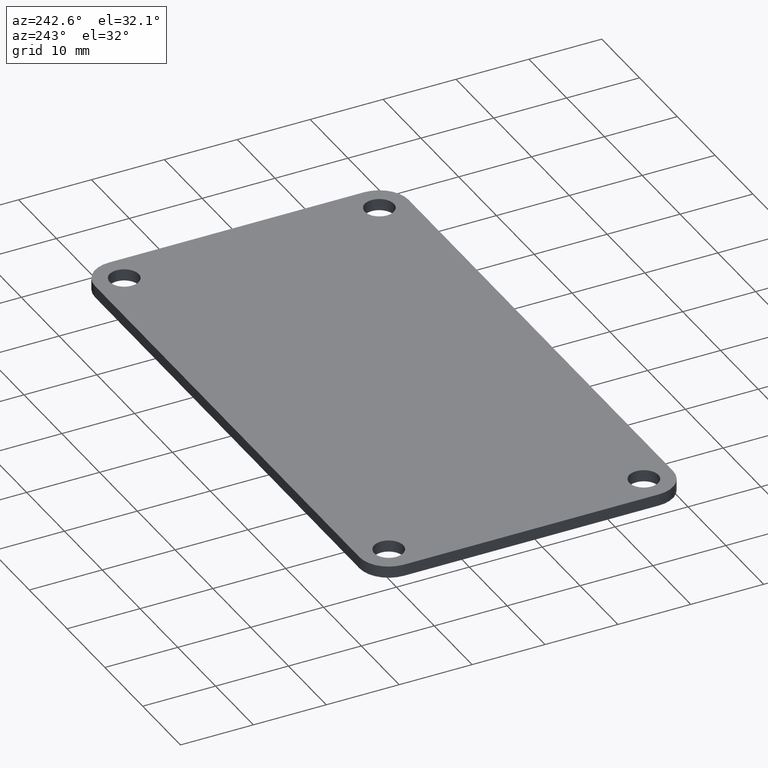
[diagram: clean part render]
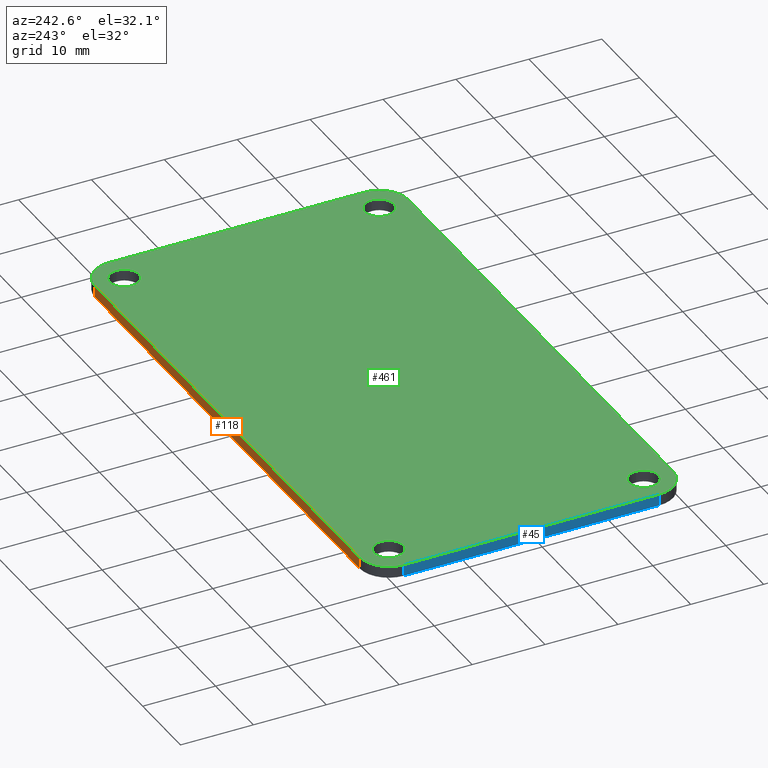
[diagram: same view with three faces highlighted in distinct colors, each labeled with its STEP entity id]
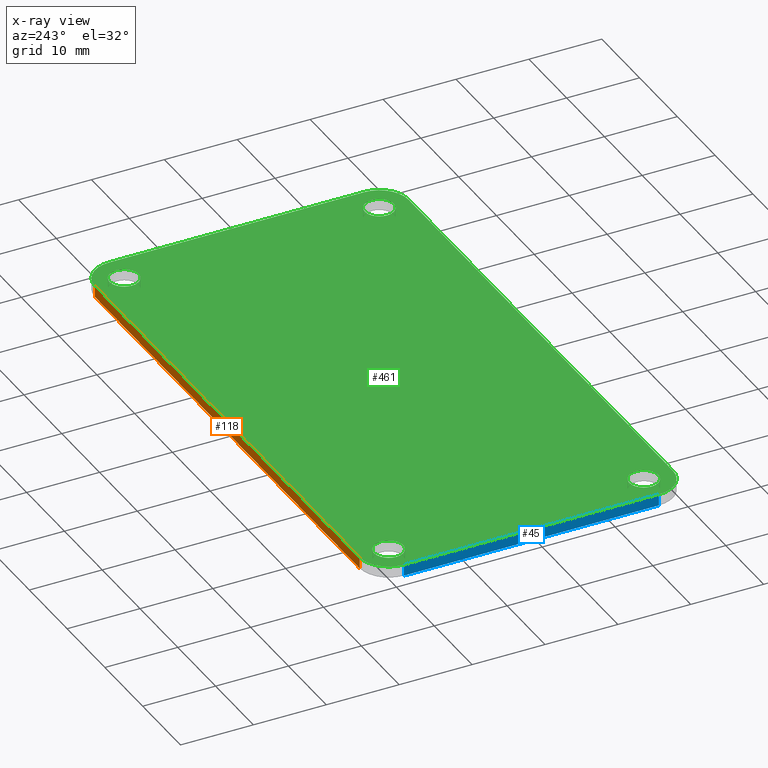
[diagram: x-ray of the same camera — body ghosted, the three highlighted faces saturated]
A machine part, auxiliary view with three faces highlighted in distinct colors.
The next image is the same camera in x-ray (body ghosted, the three faces saturated) — at least one of them is partly hidden behind the body in this view.
Their STEP definitions:

[orange] entity #118 — the highlighted planar face has unit normal (0, 1, 0).
#91 = VERTEX_POINT('',#92);
#92 = CARTESIAN_POINT('',(4.,43.,1.60000442));
#99 = EDGE_CURVE('',#100,#91,#102,.T.);
#100 = VERTEX_POINT('',#101);
#101 = CARTESIAN_POINT('',(4.,43.,0.));
#102 = LINE('',#103,#104);
#103 = CARTESIAN_POINT('',(4.,43.,0.));
#104 = VECTOR('',#105,1.);
#105 = DIRECTION('',(0.,0.,1.));
#118 = ADVANCED_FACE('',(#119),#144,.T.);
#119 = FACE_BOUND('',#120,.T.);
#120 = EDGE_LOOP('',(#121,#122,#130,#138));
#121 = ORIENTED_EDGE('',*,*,#99,.T.);
#122 = ORIENTED_EDGE('',*,*,#123,.T.);
#123 = EDGE_CURVE('',#91,#124,#126,.T.);
#124 = VERTEX_POINT('',#125);
#125 = CARTESIAN_POINT('',(74.,43.,1.60000442));
#126 = LINE('',#127,#128);
#127 = CARTESIAN_POINT('',(4.,43.,1.60000442));
#128 = VECTOR('',#129,1.);
#129 = DIRECTION('',(1.,0.,0.));
#130 = ORIENTED_EDGE('',*,*,#131,.F.);
#131 = EDGE_CURVE('',#132,#124,#134,.T.);
#132 = VERTEX_POINT('',#133);
#133 = CARTESIAN_POINT('',(74.,43.,0.));
#134 = LINE('',#135,#136);
#135 = CARTESIAN_POINT('',(74.,43.,0.));
#136 = VECTOR('',#137,1.);
#137 = DIRECTION('',(0.,0.,1.));
#138 = ORIENTED_EDGE('',*,*,#139,.F.);
#139 = EDGE_CURVE('',#100,#132,#140,.T.);
#140 = LINE('',#141,#142);
#141 = CARTESIAN_POINT('',(4.,43.,0.));
#142 = VECTOR('',#143,1.);
#143 = DIRECTION('',(1.,0.,0.));
#144 = PLANE('',#145);
#145 = AXIS2_PLACEMENT_3D('',#146,#147,#148);
#146 = CARTESIAN_POINT('',(4.,43.,0.));
#147 = DIRECTION('',(0.,1.,0.));
#148 = DIRECTION('',(1.,0.,0.));

[blue] entity #45 — the highlighted planar face has unit normal (-1, 0, 0).
#45 = ADVANCED_FACE('',(#46),#80,.T.);
#46 = FACE_BOUND('',#47,.T.);
#47 = EDGE_LOOP('',(#48,#58,#66,#74));
#48 = ORIENTED_EDGE('',*,*,#49,.T.);
#49 = EDGE_CURVE('',#50,#52,#54,.T.);
#50 = VERTEX_POINT('',#51);
#51 = CARTESIAN_POINT('',(-8.881784154862E-16,4.,0.));
#52 = VERTEX_POINT('',#53);
#53 = CARTESIAN_POINT('',(-8.881784154862E-16,4.,1.60000442));
#54 = LINE('',#55,#56);
#55 = CARTESIAN_POINT('',(-8.881784154862E-16,4.,0.));
#56 = VECTOR('',#57,1.);
#57 = DIRECTION('',(0.,0.,1.));
#58 = ORIENTED_EDGE('',*,*,#59,.T.);
#59 = EDGE_CURVE('',#52,#60,#62,.T.);
#60 = VERTEX_POINT('',#61);
#61 = CARTESIAN_POINT('',(-8.881784197001E-16,39.,1.60000442));
#62 = LINE('',#63,#64);
#63 = CARTESIAN_POINT('',(0.,4.,1.60000442));
#64 = VECTOR('',#65,1.);
#65 = DIRECTION('',(0.,1.,0.));
#66 = ORIENTED_EDGE('',*,*,#67,.F.);
#67 = EDGE_CURVE('',#68,#60,#70,.T.);
#68 = VERTEX_POINT('',#69);
#69 = CARTESIAN_POINT('',(-8.881784197001E-16,39.,0.));
#70 = LINE('',#71,#72);
#71 = CARTESIAN_POINT('',(-8.881784197001E-16,39.,0.));
#72 = VECTOR('',#73,1.);
#73 = DIRECTION('',(0.,0.,1.));
#74 = ORIENTED_EDGE('',*,*,#75,.F.);
#75 = EDGE_CURVE('',#50,#68,#76,.T.);
#76 = LINE('',#77,#78);
#77 = CARTESIAN_POINT('',(0.,4.,0.));
#78 = VECTOR('',#79,1.);
#79 = DIRECTION('',(0.,1.,0.));
#80 = PLANE('',#81);
#81 = AXIS2_PLACEMENT_3D('',#82,#83,#84);
#82 = CARTESIAN_POINT('',(0.,4.,0.));
#83 = DIRECTION('',(-1.,0.,0.));
#84 = DIRECTION('',(0.,1.,0.));

[green] entity #461 — the highlighted planar face has unit normal (-0, -0, -1).
#52 = VERTEX_POINT('',#53);
#53 = CARTESIAN_POINT('',(-8.881784154862E-16,4.,1.60000442));
#59 = EDGE_CURVE('',#52,#60,#62,.T.);
#60 = VERTEX_POINT('',#61);
#61 = CARTESIAN_POINT('',(-8.881784197001E-16,39.,1.60000442));
#62 = LINE('',#63,#64);
#63 = CARTESIAN_POINT('',(0.,4.,1.60000442));
#64 = VECTOR('',#65,1.);
#65 = DIRECTION('',(0.,1.,0.));
#90 = EDGE_CURVE('',#60,#91,#93,.T.);
#91 = VERTEX_POINT('',#92);
#92 = CARTESIAN_POINT('',(4.,43.,1.60000442));
#93 = CIRCLE('',#94,4.001459203163);
#94 = AXIS2_PLACEMENT_3D('',#95,#96,#97);
#95 = CARTESIAN_POINT('',(4.001458937198,38.998541062802,1.60000442));
#96 = DIRECTION('',(0.,0.,-1.));
#97 = DIRECTION('',(-0.999999933533,3.646012926767E-04,0.));
#123 = EDGE_CURVE('',#91,#124,#126,.T.);
#124 = VERTEX_POINT('',#125);
#125 = CARTESIAN_POINT('',(74.,43.,1.60000442));
#126 = LINE('',#127,#128);
#127 = CARTESIAN_POINT('',(4.,43.,1.60000442));
#128 = VECTOR('',#129,1.);
#129 = DIRECTION('',(1.,0.,0.));
#154 = EDGE_CURVE('',#124,#155,#157,.T.);
#155 = VERTEX_POINT('',#156);
#156 = CARTESIAN_POINT('',(78.,39.,1.60000442));
#157 = CIRCLE('',#158,4.001459203163);
#158 = AXIS2_PLACEMENT_3D('',#159,#160,#161);
#159 = CARTESIAN_POINT('',(73.998541062802,38.998541062802,1.60000442));
#160 = DIRECTION('',(0.,0.,-1.));
#161 = DIRECTION('',(3.646012926767E-04,0.999999933533,0.));
#187 = EDGE_CURVE('',#155,#188,#190,.T.);
#188 = VERTEX_POINT('',#189);
#189 = CARTESIAN_POINT('',(78.,4.,1.60000442));
#190 = LINE('',#191,#192);
#191 = CARTESIAN_POINT('',(78.,39.,1.60000442));
#192 = VECTOR('',#193,1.);
#193 = DIRECTION('',(0.,-1.,0.));
#218 = EDGE_CURVE('',#188,#219,#221,.T.);
#219 = VERTEX_POINT('',#220);
#220 = CARTESIAN_POINT('',(74.,-1.33226762955E-15,1.60000442));
#221 = CIRCLE('',#222,4.001459203163);
#222 = AXIS2_PLACEMENT_3D('',#223,#224,#225);
#223 = CARTESIAN_POINT('',(73.998541062802,4.001458937198,1.60000442));
#224 = DIRECTION('',(0.,0.,-1.));
#225 = DIRECTION('',(0.999999933533,-3.646012926758E-04,0.));
#251 = EDGE_CURVE('',#219,#252,#254,.T.);
#252 = VERTEX_POINT('',#253);
#253 = CARTESIAN_POINT('',(4.,-4.440892098501E-16,1.60000442));
#254 = LINE('',#255,#256);
#255 = CARTESIAN_POINT('',(74.,0.,1.60000442));
#256 = VECTOR('',#257,1.);
#257 = DIRECTION('',(-1.,0.,0.));
#282 = EDGE_CURVE('',#252,#52,#283,.T.);
#283 = CIRCLE('',#284,4.001459203163);
#284 = AXIS2_PLACEMENT_3D('',#285,#286,#287);
#285 = CARTESIAN_POINT('',(4.001458937198,4.001458937198,1.60000442));
#286 = DIRECTION('',(0.,0.,-1.));
#287 = DIRECTION('',(-3.646012926771E-04,-0.999999933533,-0.));
#308 = VERTEX_POINT('',#309);
#309 = CARTESIAN_POINT('',(6.,4.,1.60000442));
#315 = EDGE_CURVE('',#308,#308,#316,.T.);
#316 = CIRCLE('',#317,2.);
#317 = AXIS2_PLACEMENT_3D('',#318,#319,#320);
#318 = CARTESIAN_POINT('',(4.,4.,1.60000442));
#319 = DIRECTION('',(0.,0.,1.));
#320 = DIRECTION('',(1.,0.,-0.));
#341 = VERTEX_POINT('',#342);
#342 = CARTESIAN_POINT('',(6.,39.,1.60000442));
#348 = EDGE_CURVE('',#341,#341,#349,.T.);
#349 = CIRCLE('',#350,2.);
#350 = AXIS2_PLACEMENT_3D('',#351,#352,#353);
#351 = CARTESIAN_POINT('',(4.,39.,1.60000442));
#352 = DIRECTION('',(0.,0.,1.));
#353 = DIRECTION('',(1.,0.,-0.));
#374 = VERTEX_POINT('',#375);
#375 = CARTESIAN_POINT('',(76.,4.,1.60000442));
#381 = EDGE_CURVE('',#374,#374,#382,.T.);
#382 = CIRCLE('',#383,2.);
#383 = AXIS2_PLACEMENT_3D('',#384,#385,#386);
#384 = CARTESIAN_POINT('',(74.,4.,1.60000442));
#385 = DIRECTION('',(0.,0.,1.));
#386 = DIRECTION('',(1.,0.,-0.));
#407 = VERTEX_POINT('',#408);
#408 = CARTESIAN_POINT('',(76.,39.,1.60000442));
#414 = EDGE_CURVE('',#407,#407,#415,.T.);
#415 = CIRCLE('',#416,2.);
#416 = AXIS2_PLACEMENT_3D('',#417,#418,#419);
#417 = CARTESIAN_POINT('',(74.,39.,1.60000442));
#418 = DIRECTION('',(0.,0.,1.));
#419 = DIRECTION('',(1.,0.,-0.));
#461 = ADVANCED_FACE('',(#462,#472,#475,#478,#481),#484,.F.);
#462 = FACE_BOUND('',#463,.F.);
#463 = EDGE_LOOP('',(#464,#465,#466,#467,#468,#469,#470,#471));
#464 = ORIENTED_EDGE('',*,*,#59,.T.);
#465 = ORIENTED_EDGE('',*,*,#90,.T.);
#466 = ORIENTED_EDGE('',*,*,#123,.T.);
#467 = ORIENTED_EDGE('',*,*,#154,.T.);
#468 = ORIENTED_EDGE('',*,*,#187,.T.);
#469 = ORIENTED_EDGE('',*,*,#218,.T.);
#470 = ORIENTED_EDGE('',*,*,#251,.T.);
#471 = ORIENTED_EDGE('',*,*,#282,.T.);
#472 = FACE_BOUND('',#473,.F.);
#473 = EDGE_LOOP('',(#474));
#474 = ORIENTED_EDGE('',*,*,#315,.T.);
#475 = FACE_BOUND('',#476,.F.);
#476 = EDGE_LOOP('',(#477));
#477 = ORIENTED_EDGE('',*,*,#348,.T.);
#478 = FACE_BOUND('',#479,.F.);
#479 = EDGE_LOOP('',(#480));
#480 = ORIENTED_EDGE('',*,*,#381,.T.);
#481 = FACE_BOUND('',#482,.F.);
#482 = EDGE_LOOP('',(#483));
#483 = ORIENTED_EDGE('',*,*,#414,.T.);
#484 = PLANE('',#485);
#485 = AXIS2_PLACEMENT_3D('',#486,#487,#488);
#486 = CARTESIAN_POINT('',(39.,21.5,1.60000442));
#487 = DIRECTION('',(-0.,-0.,-1.));
#488 = DIRECTION('',(-1.,0.,0.));